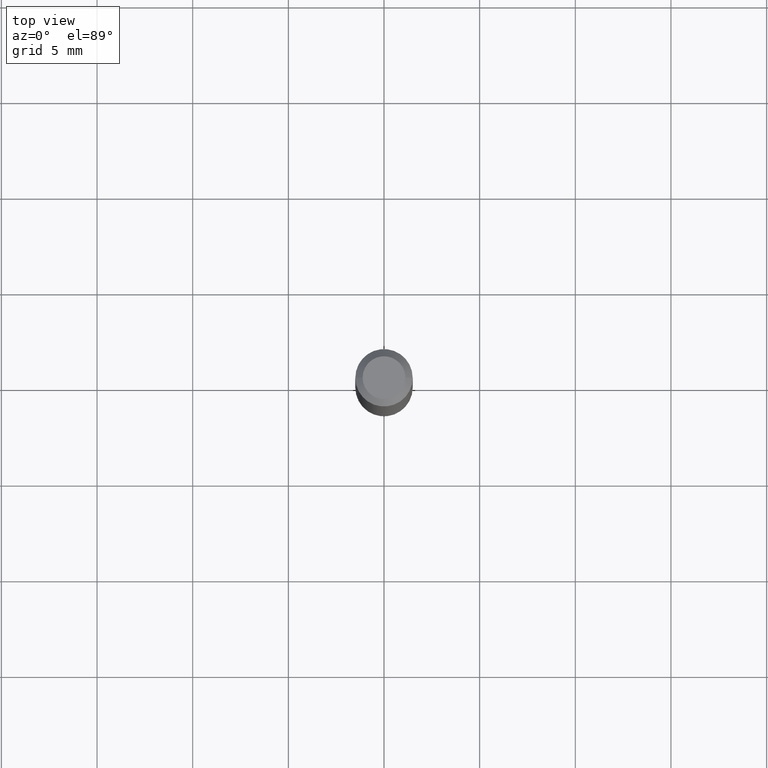
[diagram: clean part render]
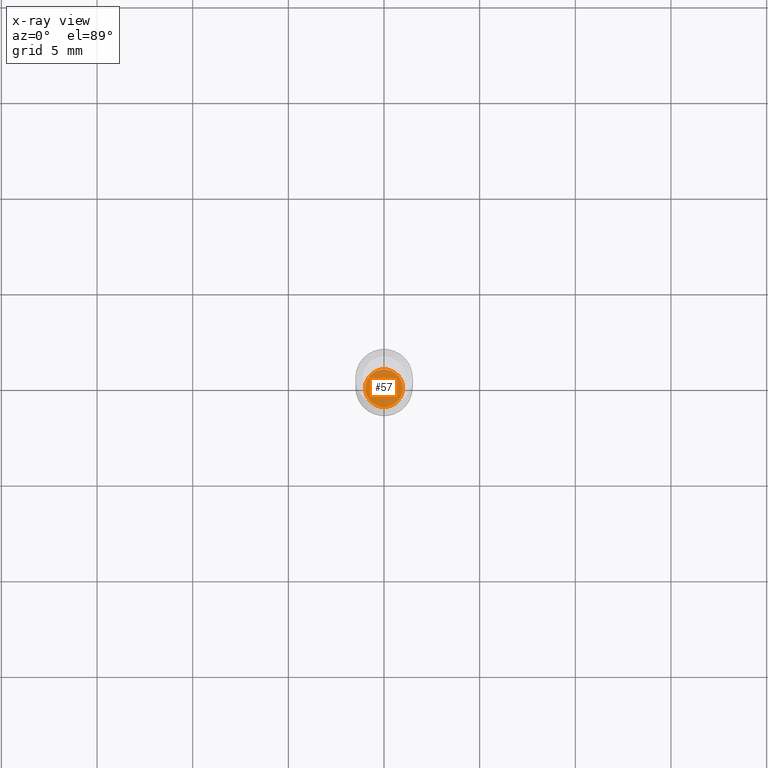
[diagram: x-ray — body ghosted, one internal face saturated and labeled with its STEP entity id]
A machine part, top view, then the same camera in x-ray: the body is ghosted and one INTERNAL B-rep face — a face not visible from any outside direction — is saturated and labeled: STEP entity #57.
In plain terms, the highlighted planar face has unit normal (-0, 0, 1).
Its self-contained STEP definition (entity closure, byte-faithful):
#2 = AXIS2_PLACEMENT_3D ( 'NONE', #87, #148, #304 ) ;
#42 = ORIENTED_EDGE ( 'NONE', *, *, #149, .F. ) ;
#53 = AXIS2_PLACEMENT_3D ( 'NONE', #147, #111, #255 ) ;
#57 = ADVANCED_FACE ( 'NONE', ( #151 ), #334, .F. ) ;
#87 = CARTESIAN_POINT ( 'NONE',  ( 3.081046148912652946E-29, -4.398917338808479031E-15, -1.259899999999999798 ) ) ;
#111 = DIRECTION ( 'NONE',  ( -2.445468806185136597E-29, 3.491481338843145583E-15, 1.000000000000000000 ) ) ;
#147 = CARTESIAN_POINT ( 'NONE',  ( 3.081046148912652386E-29, -4.398917338808477453E-15, -1.259899999999999576 ) ) ;
#148 = DIRECTION ( 'NONE',  ( -2.438088387897960049E-29, 3.491481338843145188E-15, 1.000000000000000000 ) ) ;
#149 = EDGE_CURVE ( 'NONE', #215, #300, #458, .T. ) ;
#151 = FACE_OUTER_BOUND ( 'NONE', #418, .T. ) ;
#160 = DIRECTION ( 'NONE',  ( 1.000000000000000000, -6.982962677686256455E-15, 0.000000000000000000 ) ) ;
#197 = DIRECTION ( 'NONE',  ( -2.445468806185136597E-29, 3.491481338843145583E-15, 1.000000000000000000 ) ) ;
#215 = VERTEX_POINT ( 'NONE', #276 ) ;
#255 = DIRECTION ( 'NONE',  ( 1.000000000000000000, -6.982962677686256455E-15, 0.000000000000000000 ) ) ;
#276 = CARTESIAN_POINT ( 'NONE',  ( -0.03885000000000000259, -4.120222258791567755E-15, -1.259899999999999576 ) ) ;
#285 = AXIS2_PLACEMENT_3D ( 'NONE', #379, #197, #160 ) ;
#287 = CARTESIAN_POINT ( 'NONE',  ( 0.03885000000000000259, -4.670205438836588574E-15, -1.259899999999999576 ) ) ;
#300 = VERTEX_POINT ( 'NONE', #287 ) ;
#304 = DIRECTION ( 'NONE',  ( 1.000000000000000000, -6.982962677686265922E-15, 4.876176775795935793E-29 ) ) ;
#334 = PLANE ( 'NONE',  #2 ) ;
#379 = CARTESIAN_POINT ( 'NONE',  ( 3.081046148912652386E-29, -4.398917338808477453E-15, -1.259899999999999576 ) ) ;
#383 = EDGE_CURVE ( 'NONE', #300, #215, #439, .T. ) ;
#418 = EDGE_LOOP ( 'NONE', ( #453, #42 ) ) ;
#439 = CIRCLE ( 'NONE', #53, 0.03885000000000000259 ) ;
#453 = ORIENTED_EDGE ( 'NONE', *, *, #383, .F. ) ;
#458 = CIRCLE ( 'NONE', #285, 0.03885000000000000259 ) ;